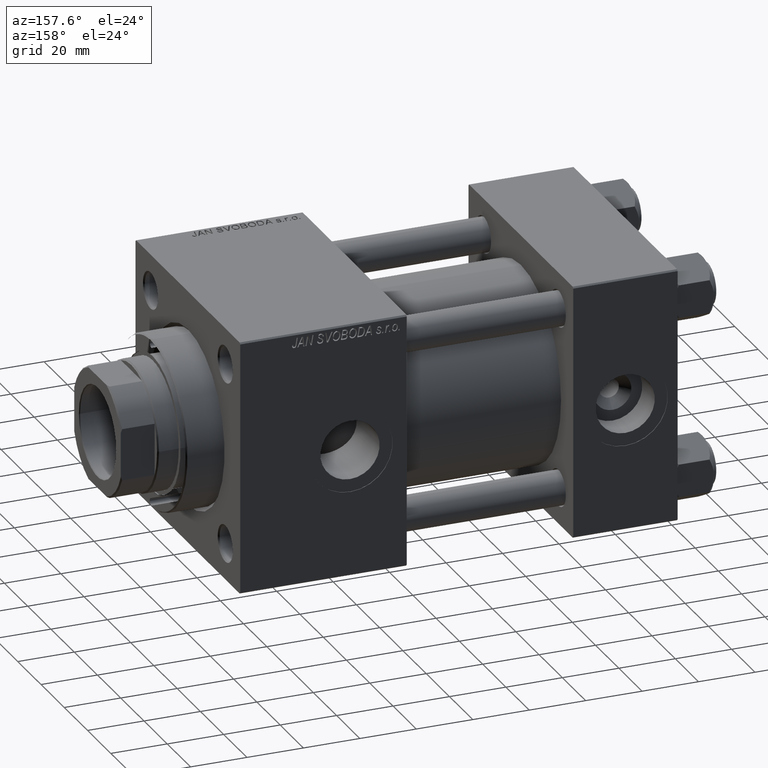
[diagram: clean part render]
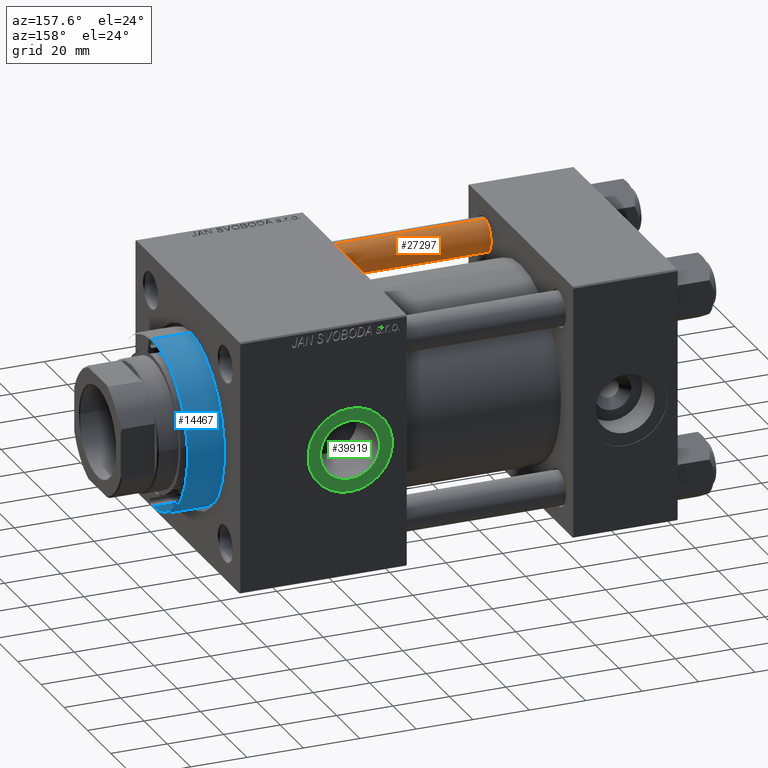
[diagram: same view with three faces highlighted in distinct colors, each labeled with its STEP entity id]
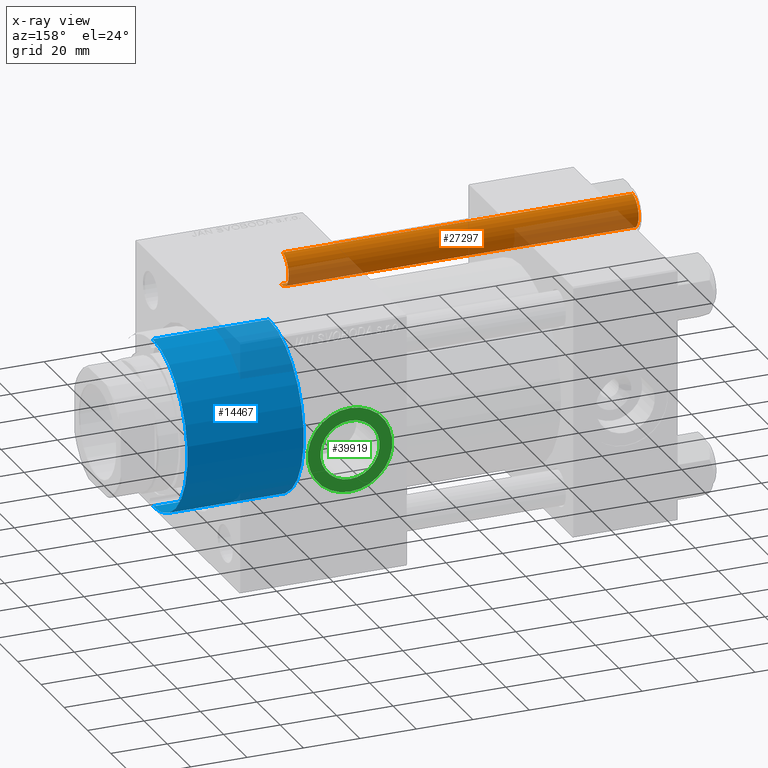
[diagram: x-ray of the same camera — body ghosted, the three highlighted faces saturated]
A machine part, auxiliary view with three faces highlighted in distinct colors.
The next image is the same camera in x-ray (body ghosted, the three faces saturated) — at least one of them is partly hidden behind the body in this view.
Their STEP definitions:

[orange] entity #27297 — the highlighted cylindrical surface (edge-blend (fillet) strip) has radius 6 mm, axis along (1, 0, -0).
#3095 = VERTEX_POINT ( 'NONE', #40991 ) ;
#3236 = ORIENTED_EDGE ( 'NONE', *, *, #10460, .T. ) ;
#6092 = CARTESIAN_POINT ( 'NONE',  ( 0.000000000000000000, 0.000000000000000000, 0.4999999999999865663 ) ) ;
#7191 = CARTESIAN_POINT ( 'NONE',  ( -6.000000000000000888, 0.000000000000000000, 125.0000000000000000 ) ) ;
#8195 = CARTESIAN_POINT ( 'NONE',  ( 6.000000000000000888, 7.347880794884120722E-16, 125.0000000000000000 ) ) ;
#9418 = DIRECTION ( 'NONE',  ( -0.000000000000000000, -0.000000000000000000, -1.000000000000000000 ) ) ;
#10460 = EDGE_CURVE ( 'NONE', #25505, #3095, #13463, .T. ) ;
#11263 = LINE ( 'NONE', #7191, #32155 ) ;
#11873 = DIRECTION ( 'NONE',  ( 1.000000000000000000, 0.000000000000000000, 0.000000000000000000 ) ) ;
#12623 = VERTEX_POINT ( 'NONE', #37306 ) ;
#13463 = CIRCLE ( 'NONE', #14257, 6.000000000000000888 ) ;
#14257 = AXIS2_PLACEMENT_3D ( 'NONE', #34521, #19234, #11873 ) ;
#15316 = DIRECTION ( 'NONE',  ( -0.000000000000000000, -0.000000000000000000, -1.000000000000000000 ) ) ;
#16353 = ORIENTED_EDGE ( 'NONE', *, *, #39525, .T. ) ;
#18032 = DIRECTION ( 'NONE',  ( -0.000000000000000000, -0.000000000000000000, 1.000000000000000000 ) ) ;
#19234 = DIRECTION ( 'NONE',  ( 0.000000000000000000, 0.000000000000000000, -1.000000000000000000 ) ) ;
#21277 = EDGE_CURVE ( 'NONE', #25505, #34779, #35429, .T. ) ;
#21605 = DIRECTION ( 'NONE',  ( 1.000000000000000000, 0.000000000000000000, 0.000000000000000000 ) ) ;
#24426 = FACE_OUTER_BOUND ( 'NONE', #28447, .T. ) ;
#25505 = VERTEX_POINT ( 'NONE', #38522 ) ;
#26539 = CARTESIAN_POINT ( 'NONE',  ( 6.000000000000000888, 7.347880794884120722E-16, 0.4999999999999865663 ) ) ;
#27297 = ADVANCED_FACE ( 'NONE', ( #24426 ), #28994, .T. ) ;
#28447 = EDGE_LOOP ( 'NONE', ( #30144, #3236, #16353, #35785 ) ) ;
#28491 = AXIS2_PLACEMENT_3D ( 'NONE', #36636, #9418, #44520 ) ;
#28994 = CYLINDRICAL_SURFACE ( 'NONE', #28491, 6.000000000000000888 ) ;
#30144 = ORIENTED_EDGE ( 'NONE', *, *, #21277, .F. ) ;
#32155 = VECTOR ( 'NONE', #15316, 1000.000000000000000 ) ;
#33250 = VECTOR ( 'NONE', #47118, 1000.000000000000000 ) ;
#34521 = CARTESIAN_POINT ( 'NONE',  ( 0.000000000000000000, 0.000000000000000000, 124.5000000000000000 ) ) ;
#34779 = VERTEX_POINT ( 'NONE', #26539 ) ;
#35429 = LINE ( 'NONE', #8195, #33250 ) ;
#35785 = ORIENTED_EDGE ( 'NONE', *, *, #40152, .T. ) ;
#36636 = CARTESIAN_POINT ( 'NONE',  ( 0.000000000000000000, 0.000000000000000000, 125.0000000000000000 ) ) ;
#37306 = CARTESIAN_POINT ( 'NONE',  ( -6.000000000000000888, 0.000000000000000000, 0.4999999999999865663 ) ) ;
#38522 = CARTESIAN_POINT ( 'NONE',  ( 6.000000000000000888, 7.347880794884120722E-16, 124.5000000000000000 ) ) ;
#39525 = EDGE_CURVE ( 'NONE', #3095, #12623, #11263, .T. ) ;
#40152 = EDGE_CURVE ( 'NONE', #12623, #34779, #46762, .T. ) ;
#40991 = CARTESIAN_POINT ( 'NONE',  ( -6.000000000000000888, 0.000000000000000000, 124.5000000000000000 ) ) ;
#44520 = DIRECTION ( 'NONE',  ( -1.000000000000000000, 0.000000000000000000, 0.000000000000000000 ) ) ;
#45954 = AXIS2_PLACEMENT_3D ( 'NONE', #6092, #18032, #21605 ) ;
#46762 = CIRCLE ( 'NONE', #45954, 6.000000000000000888 ) ;
#47118 = DIRECTION ( 'NONE',  ( -0.000000000000000000, -0.000000000000000000, -1.000000000000000000 ) ) ;

[blue] entity #14467 — the highlighted cylindrical surface (partial cylindrical patch) has radius 30 mm, axis along (-1, -0, -0).
#1305 = VERTEX_POINT ( 'NONE', #27582 ) ;
#1387 = AXIS2_PLACEMENT_3D ( 'NONE', #14692, #18511, #14200 ) ;
#1775 = CARTESIAN_POINT ( 'NONE',  ( 30.00000000000000000, 3.673940397442059178E-15, 28.69999999999999929 ) ) ;
#2051 = VERTEX_POINT ( 'NONE', #20059 ) ;
#2468 = VECTOR ( 'NONE', #35876, 1000.000000000000000 ) ;
#3156 = VERTEX_POINT ( 'NONE', #35101 ) ;
#10824 = EDGE_CURVE ( 'NONE', #1305, #2051, #45140, .T. ) ;
#14200 = DIRECTION ( 'NONE',  ( -1.000000000000000000, 0.000000000000000000, 0.000000000000000000 ) ) ;
#14467 = ADVANCED_FACE ( 'NONE', ( #21832 ), #14936, .T. ) ;
#14692 = CARTESIAN_POINT ( 'NONE',  ( 0.000000000000000000, 0.000000000000000000, 28.69999999999999929 ) ) ;
#14917 = ORIENTED_EDGE ( 'NONE', *, *, #41818, .T. ) ;
#14936 = CYLINDRICAL_SURFACE ( 'NONE', #1387, 30.00000000000000000 ) ;
#15422 = LINE ( 'NONE', #30964, #31871 ) ;
#17503 = ORIENTED_EDGE ( 'NONE', *, *, #22592, .T. ) ;
#18511 = DIRECTION ( 'NONE',  ( -0.000000000000000000, -0.000000000000000000, -1.000000000000000000 ) ) ;
#18655 = CIRCLE ( 'NONE', #21905, 30.00000000000000000 ) ;
#19502 = DIRECTION ( 'NONE',  ( -0.000000000000000000, -0.000000000000000000, -1.000000000000000000 ) ) ;
#20059 = CARTESIAN_POINT ( 'NONE',  ( -30.00000000000000000, 0.000000000000000000, 0.000000000000000000 ) ) ;
#21225 = CARTESIAN_POINT ( 'NONE',  ( 0.000000000000000000, 0.000000000000000000, 41.19999999999998153 ) ) ;
#21832 = FACE_OUTER_BOUND ( 'NONE', #50087, .T. ) ;
#21905 = AXIS2_PLACEMENT_3D ( 'NONE', #21225, #32689, #40833 ) ;
#22592 = EDGE_CURVE ( 'NONE', #3156, #1305, #47572, .T. ) ;
#22676 = DIRECTION ( 'NONE',  ( 1.000000000000000000, 0.000000000000000000, 0.000000000000000000 ) ) ;
#23147 = ORIENTED_EDGE ( 'NONE', *, *, #48149, .F. ) ;
#27582 = CARTESIAN_POINT ( 'NONE',  ( 30.00000000000000000, 3.673940397442059178E-15, 0.000000000000000000 ) ) ;
#30831 = CARTESIAN_POINT ( 'NONE',  ( 0.000000000000000000, 0.000000000000000000, 0.000000000000000000 ) ) ;
#30964 = CARTESIAN_POINT ( 'NONE',  ( -30.00000000000000000, 0.000000000000000000, 28.69999999999999929 ) ) ;
#31871 = VECTOR ( 'NONE', #19502, 1000.000000000000000 ) ;
#32457 = ORIENTED_EDGE ( 'NONE', *, *, #10824, .T. ) ;
#32689 = DIRECTION ( 'NONE',  ( 0.000000000000000000, 0.000000000000000000, -1.000000000000000000 ) ) ;
#32964 = AXIS2_PLACEMENT_3D ( 'NONE', #30831, #38470, #22676 ) ;
#35101 = CARTESIAN_POINT ( 'NONE',  ( 30.00000000000000000, 3.673940397442059178E-15, 41.19999999999998153 ) ) ;
#35876 = DIRECTION ( 'NONE',  ( -0.000000000000000000, -0.000000000000000000, -1.000000000000000000 ) ) ;
#38470 = DIRECTION ( 'NONE',  ( 0.000000000000000000, 0.000000000000000000, 1.000000000000000000 ) ) ;
#40833 = DIRECTION ( 'NONE',  ( 1.000000000000000000, 0.000000000000000000, 0.000000000000000000 ) ) ;
#41818 = EDGE_CURVE ( 'NONE', #48833, #3156, #18655, .T. ) ;
#45140 = CIRCLE ( 'NONE', #32964, 30.00000000000000000 ) ;
#47572 = LINE ( 'NONE', #1775, #2468 ) ;
#48149 = EDGE_CURVE ( 'NONE', #48833, #2051, #15422, .T. ) ;
#48833 = VERTEX_POINT ( 'NONE', #49181 ) ;
#49181 = CARTESIAN_POINT ( 'NONE',  ( -30.00000000000000000, 0.000000000000000000, 41.19999999999998153 ) ) ;
#50087 = EDGE_LOOP ( 'NONE', ( #14917, #17503, #32457, #23147 ) ) ;

[green] entity #39919 — the highlighted planar face has unit normal (0, 1, 0).
#2242 = VERTEX_POINT ( 'NONE', #28140 ) ;
#4082 = CARTESIAN_POINT ( 'NONE',  ( 116.0000000000000000, 44.80000000000001137, 0.000000000000000000 ) ) ;
#6002 = DIRECTION ( 'NONE',  ( 0.000000000000000000, 0.000000000000000000, 1.000000000000000000 ) ) ;
#6562 = CARTESIAN_POINT ( 'NONE',  ( 116.0000000000000000, 44.80000000000001137, 0.000000000000000000 ) ) ;
#6876 = DIRECTION ( 'NONE',  ( 0.000000000000000000, 1.000000000000000000, 0.000000000000000000 ) ) ;
#7463 = DIRECTION ( 'NONE',  ( 0.000000000000000000, 1.000000000000000000, 0.000000000000000000 ) ) ;
#7761 = VERTEX_POINT ( 'NONE', #45752 ) ;
#13872 = CARTESIAN_POINT ( 'NONE',  ( 116.0000000000000000, 44.80000000000001137, 0.000000000000000000 ) ) ;
#14509 = AXIS2_PLACEMENT_3D ( 'NONE', #38499, #7463, #22971 ) ;
#14991 = CARTESIAN_POINT ( 'NONE',  ( 116.0000000000000000, 44.80000000000001847, 0.000000000000000000 ) ) ;
#16270 = FACE_OUTER_BOUND ( 'NONE', #25941, .T. ) ;
#17386 = CARTESIAN_POINT ( 'NONE',  ( 116.0000000000000000, 44.80000000000001137, -15.00000000000001243 ) ) ;
#18050 = CIRCLE ( 'NONE', #29431, 10.48000000000000043 ) ;
#18231 = EDGE_CURVE ( 'NONE', #7761, #2242, #29116, .T. ) ;
#18984 = EDGE_LOOP ( 'NONE', ( #34976, #20129 ) ) ;
#19333 = FACE_BOUND ( 'NONE', #18984, .T. ) ;
#20129 = ORIENTED_EDGE ( 'NONE', *, *, #47782, .F. ) ;
#20422 = AXIS2_PLACEMENT_3D ( 'NONE', #6562, #44733, #22074 ) ;
#22074 = DIRECTION ( 'NONE',  ( 0.000000000000000000, 0.000000000000000000, 1.000000000000000000 ) ) ;
#22370 = AXIS2_PLACEMENT_3D ( 'NONE', #4082, #27478, #34869 ) ;
#22786 = CIRCLE ( 'NONE', #47194, 15.00000000000001243 ) ;
#22971 = DIRECTION ( 'NONE',  ( 0.000000000000000000, 0.000000000000000000, 1.000000000000000000 ) ) ;
#25828 = EDGE_CURVE ( 'NONE', #47539, #48724, #32629, .T. ) ;
#25941 = EDGE_LOOP ( 'NONE', ( #44286, #31773 ) ) ;
#27478 = DIRECTION ( 'NONE',  ( 0.000000000000000000, 1.000000000000000000, 0.000000000000000000 ) ) ;
#28140 = CARTESIAN_POINT ( 'NONE',  ( 116.0000000000000000, 44.80000000000001847, -10.48000000000000043 ) ) ;
#28900 = DIRECTION ( 'NONE',  ( 0.000000000000000000, 1.000000000000000000, 0.000000000000000000 ) ) ;
#29116 = CIRCLE ( 'NONE', #14509, 10.48000000000000043 ) ;
#29431 = AXIS2_PLACEMENT_3D ( 'NONE', #14991, #6876, #41482 ) ;
#31773 = ORIENTED_EDGE ( 'NONE', *, *, #43883, .T. ) ;
#31800 = PLANE ( 'NONE',  #22370 ) ;
#32629 = CIRCLE ( 'NONE', #20422, 15.00000000000001243 ) ;
#34869 = DIRECTION ( 'NONE',  ( 0.000000000000000000, -0.000000000000000000, 1.000000000000000000 ) ) ;
#34976 = ORIENTED_EDGE ( 'NONE', *, *, #18231, .F. ) ;
#38499 = CARTESIAN_POINT ( 'NONE',  ( 116.0000000000000000, 44.80000000000001847, 0.000000000000000000 ) ) ;
#39919 = ADVANCED_FACE ( 'NONE', ( #19333, #16270 ), #31800, .T. ) ;
#41482 = DIRECTION ( 'NONE',  ( 0.000000000000000000, 0.000000000000000000, 1.000000000000000000 ) ) ;
#43883 = EDGE_CURVE ( 'NONE', #48724, #47539, #22786, .T. ) ;
#44286 = ORIENTED_EDGE ( 'NONE', *, *, #25828, .T. ) ;
#44733 = DIRECTION ( 'NONE',  ( 0.000000000000000000, 1.000000000000000000, 0.000000000000000000 ) ) ;
#45752 = CARTESIAN_POINT ( 'NONE',  ( 116.0000000000000000, 44.80000000000001847, 10.48000000000000043 ) ) ;
#47112 = CARTESIAN_POINT ( 'NONE',  ( 116.0000000000000000, 44.80000000000001137, 15.00000000000001243 ) ) ;
#47194 = AXIS2_PLACEMENT_3D ( 'NONE', #13872, #28900, #6002 ) ;
#47539 = VERTEX_POINT ( 'NONE', #47112 ) ;
#47782 = EDGE_CURVE ( 'NONE', #2242, #7761, #18050, .T. ) ;
#48724 = VERTEX_POINT ( 'NONE', #17386 ) ;